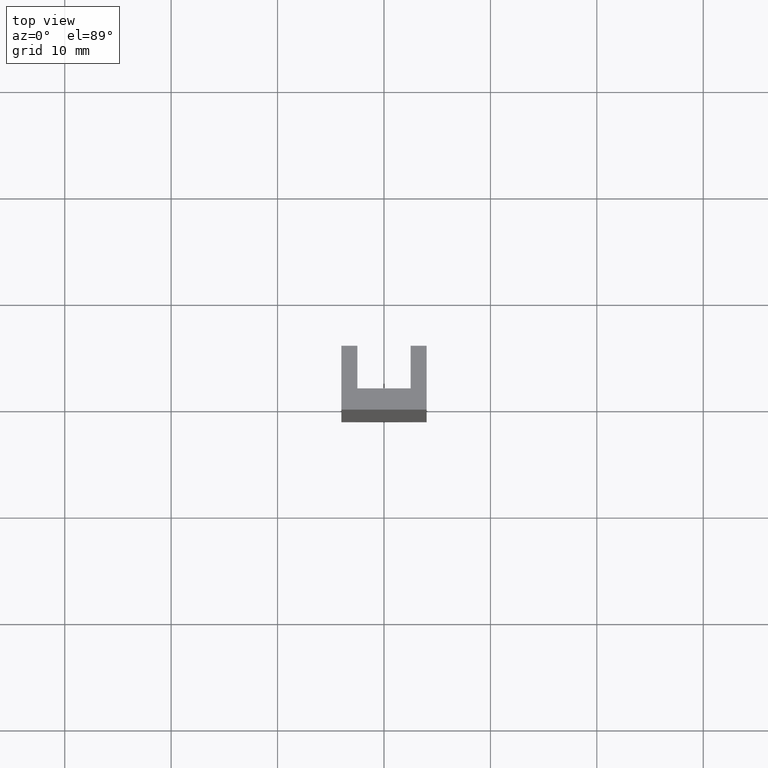
[diagram: clean part render]
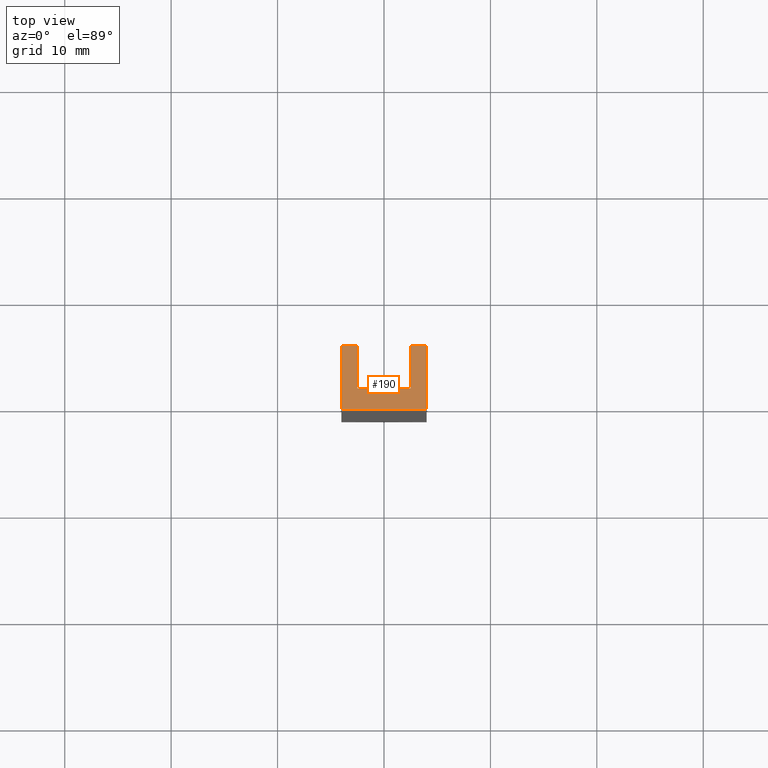
[diagram: same view with one face highlighted and labeled with its STEP entity id]
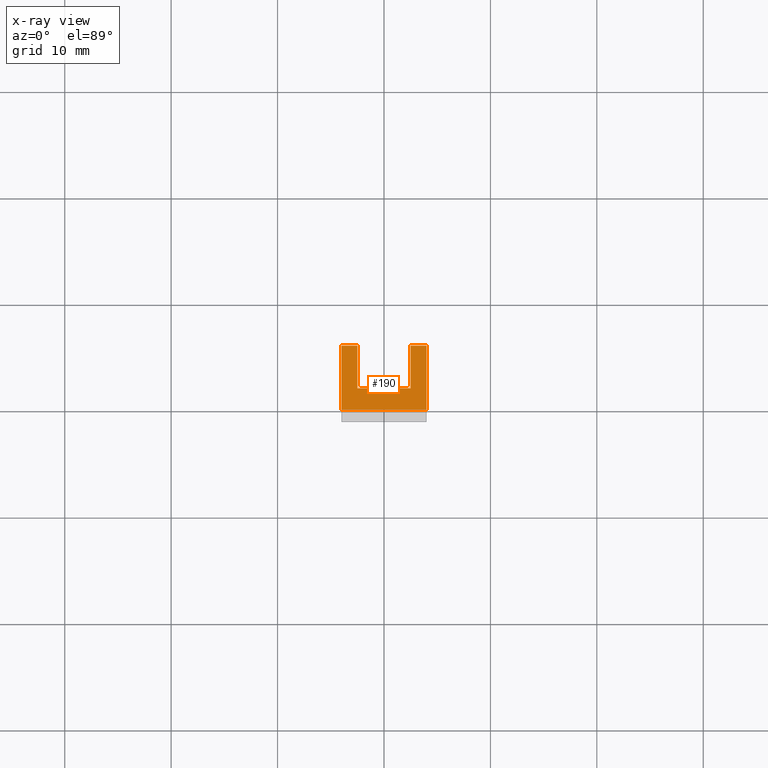
[diagram: x-ray of the same camera — body ghosted, the highlighted face saturated]
A machine part, top view. The second image highlights one B-rep face of the part: STEP entity #190.
The next image is the same camera in x-ray: the body ghosted, the highlighted face saturated — about 0% of this face is hidden behind the body in this view.
In plain terms, the highlighted planar face has unit normal (0, 0, 1).
Its self-contained STEP definition (entity closure, byte-faithful):
#24=FACE_OUTER_BOUND('',#34,.T.);
#34=EDGE_LOOP('',(#163,#164,#165,#166,#167,#168,#169,#170));
#43=LINE('',#291,#67);
#46=LINE('',#296,#70);
#48=LINE('',#300,#72);
#50=LINE('',#304,#74);
#52=LINE('',#308,#76);
#54=LINE('',#312,#78);
#56=LINE('',#316,#80);
#58=LINE('',#319,#82);
#67=VECTOR('',#238,10.);
#70=VECTOR('',#243,10.);
#72=VECTOR('',#247,10.);
#74=VECTOR('',#251,10.);
#76=VECTOR('',#255,10.);
#78=VECTOR('',#259,10.);
#80=VECTOR('',#263,10.);
#82=VECTOR('',#267,10.);
#91=VERTEX_POINT('',#289);
#92=VERTEX_POINT('',#290);
#93=VERTEX_POINT('',#295);
#94=VERTEX_POINT('',#299);
#95=VERTEX_POINT('',#303);
#96=VERTEX_POINT('',#307);
#97=VERTEX_POINT('',#311);
#98=VERTEX_POINT('',#315);
#107=EDGE_CURVE('',#91,#92,#43,.T.);
#110=EDGE_CURVE('',#92,#93,#46,.T.);
#112=EDGE_CURVE('',#93,#94,#48,.T.);
#114=EDGE_CURVE('',#94,#95,#50,.T.);
#116=EDGE_CURVE('',#95,#96,#52,.T.);
#118=EDGE_CURVE('',#96,#97,#54,.T.);
#120=EDGE_CURVE('',#97,#98,#56,.T.);
#122=EDGE_CURVE('',#98,#91,#58,.T.);
#163=ORIENTED_EDGE('',*,*,#107,.F.);
#164=ORIENTED_EDGE('',*,*,#122,.F.);
#165=ORIENTED_EDGE('',*,*,#120,.F.);
#166=ORIENTED_EDGE('',*,*,#118,.F.);
#167=ORIENTED_EDGE('',*,*,#116,.F.);
#168=ORIENTED_EDGE('',*,*,#114,.F.);
#169=ORIENTED_EDGE('',*,*,#112,.F.);
#170=ORIENTED_EDGE('',*,*,#110,.F.);
#180=PLANE('',#223);
#190=ADVANCED_FACE('',(#24),#180,.T.);
#223=AXIS2_PLACEMENT_3D('',#320,#268,#269);
#238=DIRECTION('',(0.,1.,0.));
#243=DIRECTION('',(1.,0.,0.));
#247=DIRECTION('',(0.,-1.,0.));
#251=DIRECTION('',(1.,0.,0.));
#255=DIRECTION('',(0.,1.,0.));
#259=DIRECTION('',(1.,0.,0.));
#263=DIRECTION('',(0.,-1.,0.));
#267=DIRECTION('',(-1.,0.,0.));
#268=DIRECTION('center_axis',(0.,0.,1.));
#269=DIRECTION('ref_axis',(1.,0.,0.));
#289=CARTESIAN_POINT('',(-4.,-1.,34.));
#290=CARTESIAN_POINT('',(-4.,5.,34.));
#291=CARTESIAN_POINT('',(-4.,5.,34.));
#295=CARTESIAN_POINT('',(-2.5,5.,34.));
#296=CARTESIAN_POINT('',(-2.5,5.,34.));
#299=CARTESIAN_POINT('',(-2.5,1.,34.));
#300=CARTESIAN_POINT('',(-2.5,1.,34.));
#303=CARTESIAN_POINT('',(2.5,1.,34.));
#304=CARTESIAN_POINT('',(2.5,1.,34.));
#307=CARTESIAN_POINT('',(2.5,5.,34.));
#308=CARTESIAN_POINT('',(2.5,5.,34.));
#311=CARTESIAN_POINT('',(4.,5.,34.));
#312=CARTESIAN_POINT('',(4.,5.,34.));
#315=CARTESIAN_POINT('',(4.,-1.,34.));
#316=CARTESIAN_POINT('',(4.,-1.,34.));
#319=CARTESIAN_POINT('',(-4.,-1.,34.));
#320=CARTESIAN_POINT('Origin',(-1.38777878078145E-16,1.66666666666667,34.));